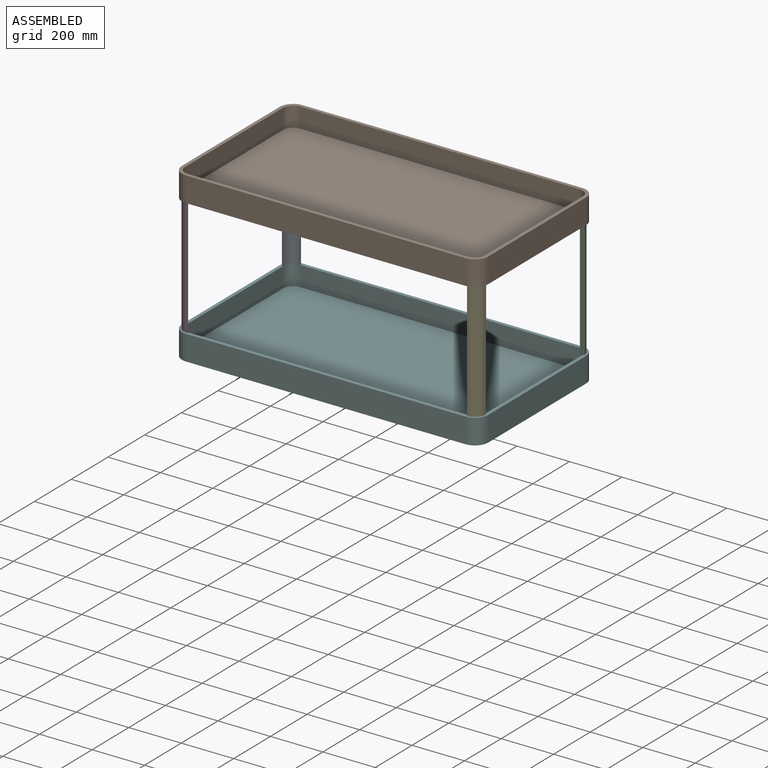
[diagram: assembled view]
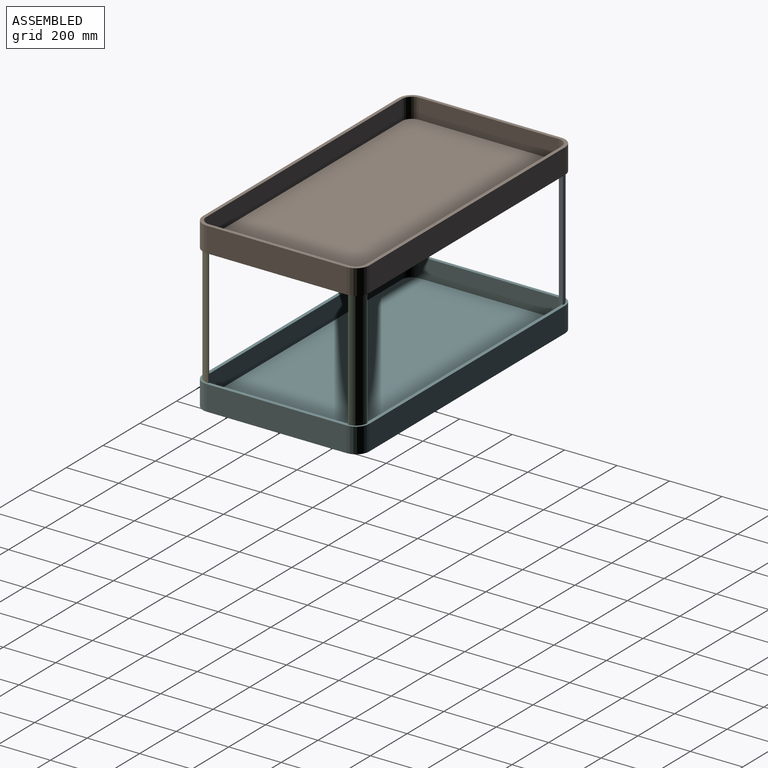
[diagram: assembled view, second angle]
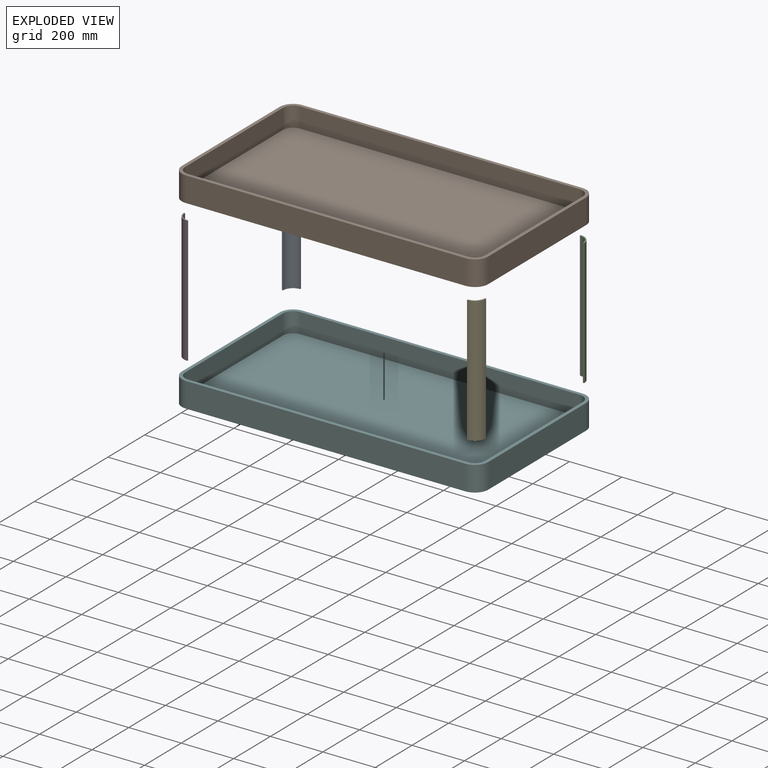
[diagram: exploded view]
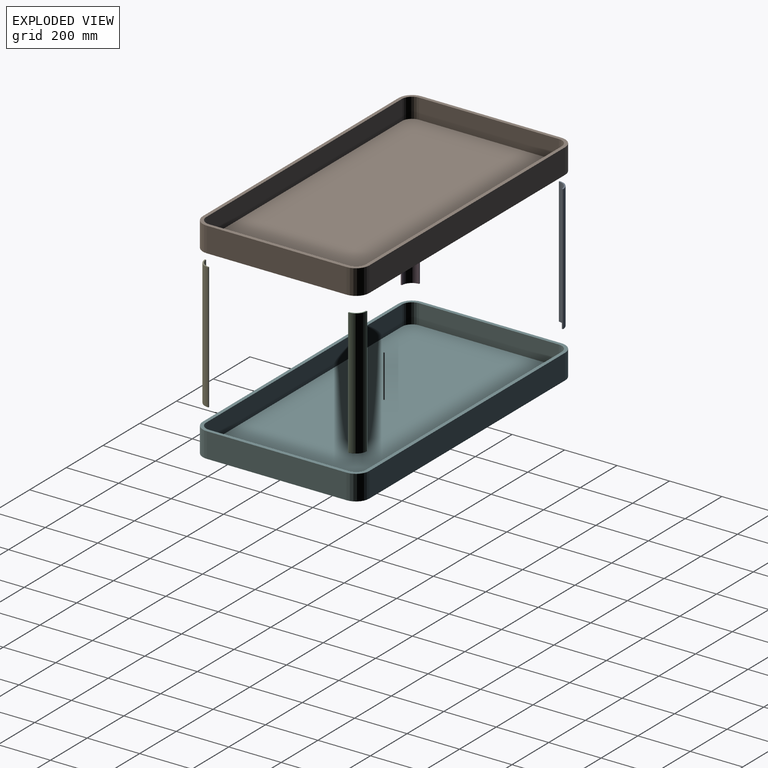
[diagram: exploded view, second angle]
ASSEMBLY  parts=6 mates=5
PART A: 6 faces, bbox 42.9x42.9x482.6 mm
  f0: plane 482.6x4.76mm, normal (1,0,0), area 2298.4mm2, adj f1,f3,f4,f5
  f1: cylinder r=42.86mm len=482.6mm, axis (0,0,-1), area 32492.6mm2, adj f0,f2,f4,f5
  f2: plane 482.6x4.76mm, normal (0,-1,0), area 2298.4mm2, adj f1,f3,f4,f5
  f3: cylinder r=38.1mm len=482.6mm, axis (0,0,-1), area 28882.3mm2, adj f0,f2,f4,f5
  f4: plane 42.86x42.86mm, normal (0,0,1), area 302.8mm2, adj f0,f1,f2,f3
  f5: plane 42.86x42.86mm, normal (0,0,-1), area 302.8mm2, adj f0,f1,f2,f3
PART B: 19 faces, bbox 1168.4x635x95.3 mm
  f0: cylinder r=50.8mm len=95.25mm, axis (0,0,-1), area 7600.6mm2, adj f1,f7,f8,f17
  f1: plane 1066.8x95.25mm, normal (0,-1,0), area 101612.7mm2, adj f0,f2,f8,f17
  f2: cylinder r=50.8mm len=95.25mm, axis (0,0,-1), area 7600.6mm2, adj f1,f3,f8,f17
  f3: plane 533.4x95.25mm, normal (1,0,0), area 50806.3mm2, adj f2,f4,f8,f17
  f4: cylinder r=50.8mm len=95.25mm, axis (0,0,-1), area 7600.6mm2, adj f3,f5,f8,f17
  f5: plane 1066.8x95.25mm, normal (0,1,0), area 101612.7mm2, adj f4,f6,f8,f17
  f6: cylinder r=50.8mm len=95.25mm, axis (0,0,-1), area 7600.6mm2, adj f5,f7,f8,f17
  f7: plane 533.4x95.25mm, normal (-1,0,0), area 50806.3mm2, adj f0,f6,f8,f17
  f8: plane 1168.4x635mm, normal (0,0,-1), area 739718.8mm2, adj f0,f1,f2,f3,f4,f5,f6,f7
  f9: cylinder r=38.1mm len=76.2mm, axis (0,0,-1), area 4560.4mm2, adj f10,f16,f17,f18
  f10: plane 533.4x76.2mm, normal (-1,0,0), area 40645.1mm2, adj f9,f11,f17,f18
  f11: cylinder r=38.1mm len=76.2mm, axis (0,0,-1), area 4560.4mm2, adj f10,f12,f17,f18
  f12: plane 1066.8x76.2mm, normal (0,1,0), area 81290.2mm2, adj f11,f13,f17,f18
  f13: cylinder r=38.1mm len=76.2mm, axis (0,0,-1), area 4560.4mm2, adj f12,f14,f17,f18
  f14: plane 533.4x76.2mm, normal (1,0,0), area 40645.1mm2, adj f13,f15,f17,f18
  f15: cylinder r=38.1mm len=76.2mm, axis (0,0,-1), area 4560.4mm2, adj f14,f16,f17,f18
  f16: plane 1066.8x76.2mm, normal (0,-1,0), area 81290.2mm2, adj f9,f15,f17,f18
  f17: plane 1168.4x635mm, normal (0,0,1), area 44192mm2, adj f0,f1,f2,f3,f4,f5,f6,f7
  f18: plane 1143x609.6mm, normal (0,0,1), area 695526.7mm2, adj f9,f10,f11,f12,f13,f14,f15,f16
PART C: same geometry as A
PART D: same geometry as A
PART E: same geometry as A
PART F: same geometry as B
PLACE A t=(-633.53,428.59,-178.45)mm
PLACE B t=(-100.13,161.89,281.93)mm
PLACE C rot(axis=(0,0,-1),90deg) t=(433.27,428.59,-191.15)mm
PLACE D rot(axis=(0,0,1),90deg) t=(-633.53,-104.81,-191.15)mm
PLACE E rot(axis=(0,0,1),180deg) t=(433.27,-104.81,-178.45)mm
PLACE F t=(-100.13,161.89,-264.17)mm
MATE fastened C.f1 <-> B.f4  axis (0,0,-1) through (433.27,428.59,50.15)mm
MATE fastened E.f1 <-> B.f2  axis (0,0,-1) through (433.27,-104.81,304.15)mm
MATE fastened D.f1 <-> B.f0  axis (0,0,-1) through (-633.53,-104.81,50.15)mm
MATE fastened A.f1 <-> B.f6  axis (0,0,-1) through (-633.53,428.59,304.15)mm
MATE fastened F.f6 <-> A.f1  axis (0,0,-1) through (-633.53,428.59,-216.55)mm
